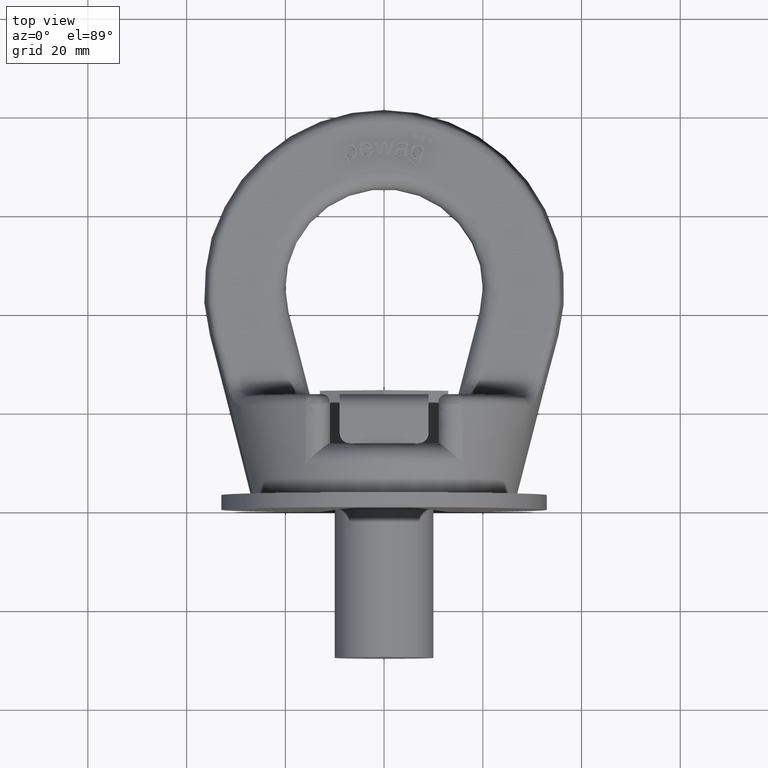
[diagram: clean part render]
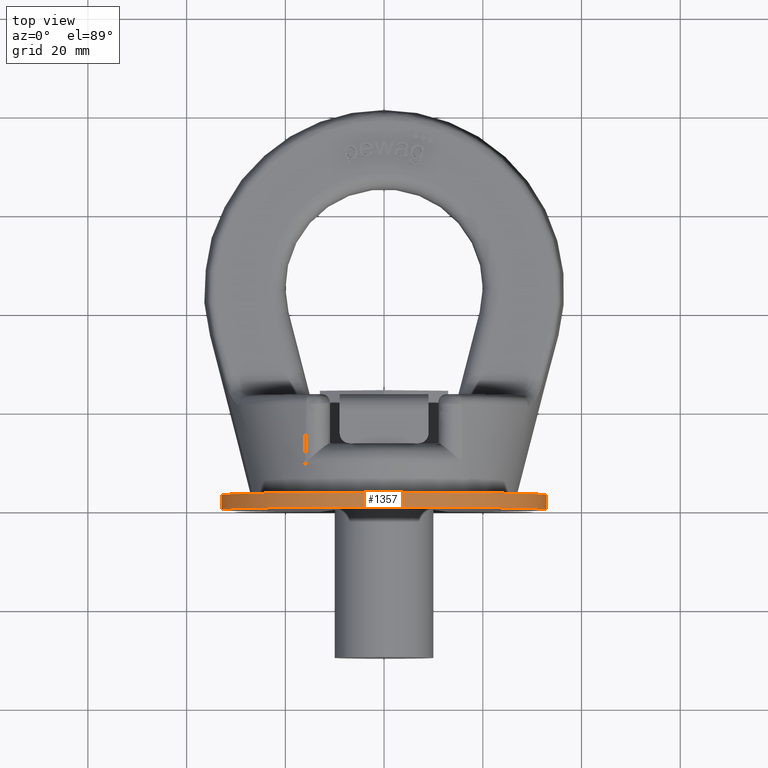
[diagram: same view with one face highlighted and labeled with its STEP entity id]
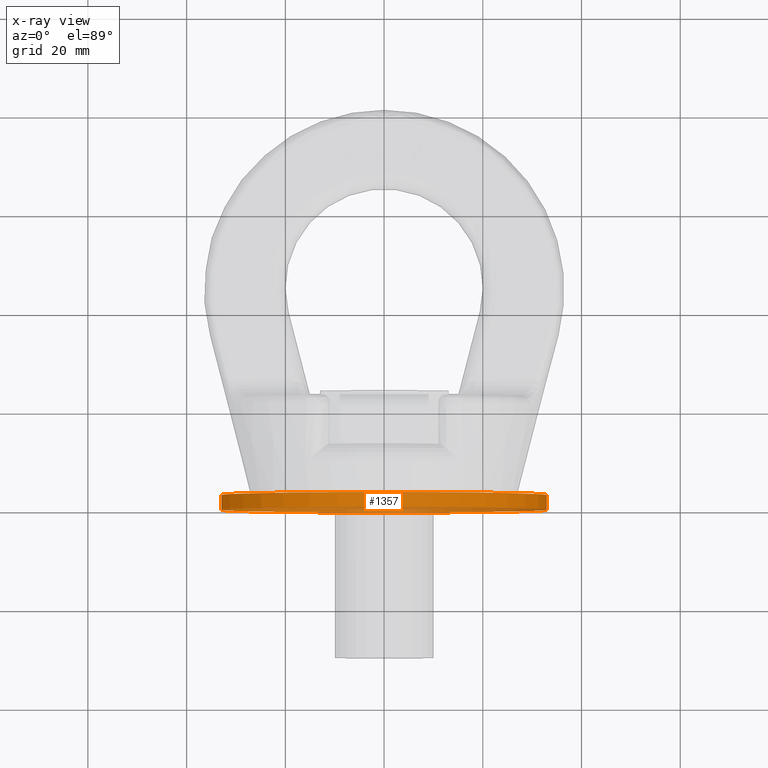
[diagram: x-ray of the same camera — body ghosted, the highlighted face saturated]
A machine part, top view. The second image highlights one B-rep face of the part: STEP entity #1357.
The next image is the same camera in x-ray: the body ghosted, the highlighted face saturated — about 18% of this face is hidden behind the body in this view.
In plain terms, the highlighted cylindrical surface (bore or boss wall) has radius 33 mm, axis along (0, -1, 0).
Its self-contained STEP definition (entity closure, byte-faithful):
#1093=CYLINDRICAL_SURFACE('',#5205,33.);
#1357=ADVANCED_FACE('',(#1808,#1809),#1093,.T.);
#1727=CIRCLE('',#5203,33.);
#1728=CIRCLE('',#5204,33.);
#1808=FACE_BOUND('',#1875,.T.);
#1809=FACE_BOUND('',#1876,.T.);
#1875=EDGE_LOOP('',(#2894));
#1876=EDGE_LOOP('',(#2895));
#2894=ORIENTED_EDGE('',*,*,#4453,.F.);
#2895=ORIENTED_EDGE('',*,*,#4454,.T.);
#4056=VERTEX_POINT('',#6938);
#4057=VERTEX_POINT('',#6940);
#4453=EDGE_CURVE('',#4056,#4056,#1727,.T.);
#4454=EDGE_CURVE('',#4057,#4057,#1728,.T.);
#5203=AXIS2_PLACEMENT_3D('',#6937,#5580,#5581);
#5204=AXIS2_PLACEMENT_3D('',#6939,#5582,#5583);
#5205=AXIS2_PLACEMENT_3D('',#6941,#5584,#5585);
#5580=DIRECTION('',(0.,-1.,0.));
#5581=DIRECTION('',(0.,0.,-1.));
#5582=DIRECTION('',(0.,-1.,0.));
#5583=DIRECTION('',(0.,0.,-1.));
#5584=DIRECTION('',(0.,-1.,0.));
#5585=DIRECTION('',(0.,0.,-1.));
#6937=CARTESIAN_POINT('',(0.,-3.46944695195361E-15,0.));
#6938=CARTESIAN_POINT('',(0.,-3.46944695195361E-15,-33.));
#6939=CARTESIAN_POINT('',(0.,2.99999999999999,0.));
#6940=CARTESIAN_POINT('',(0.,2.99999999999999,-33.));
#6941=CARTESIAN_POINT('',(0.,-19.512929080744,0.));